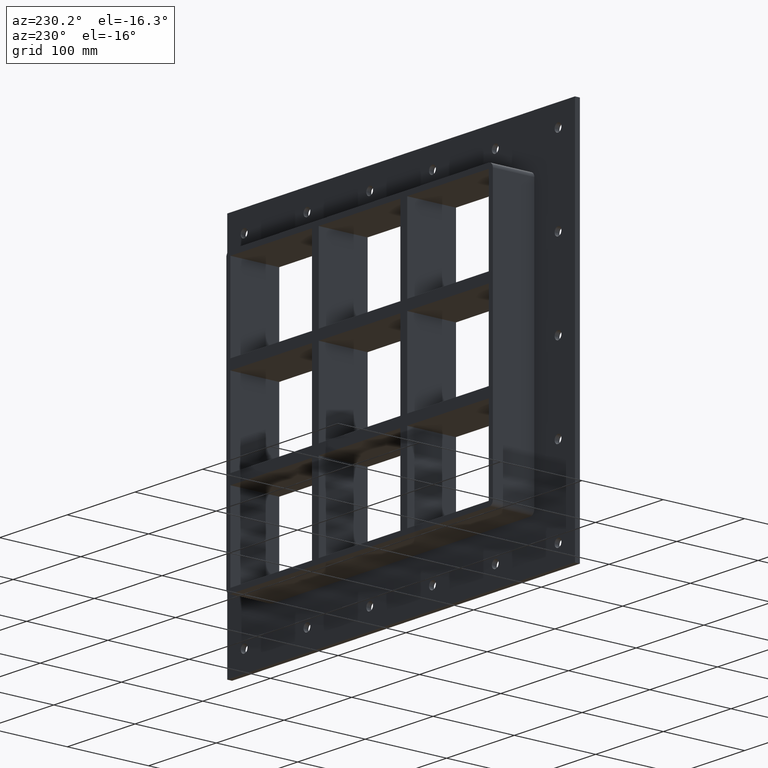
[diagram: clean part render]
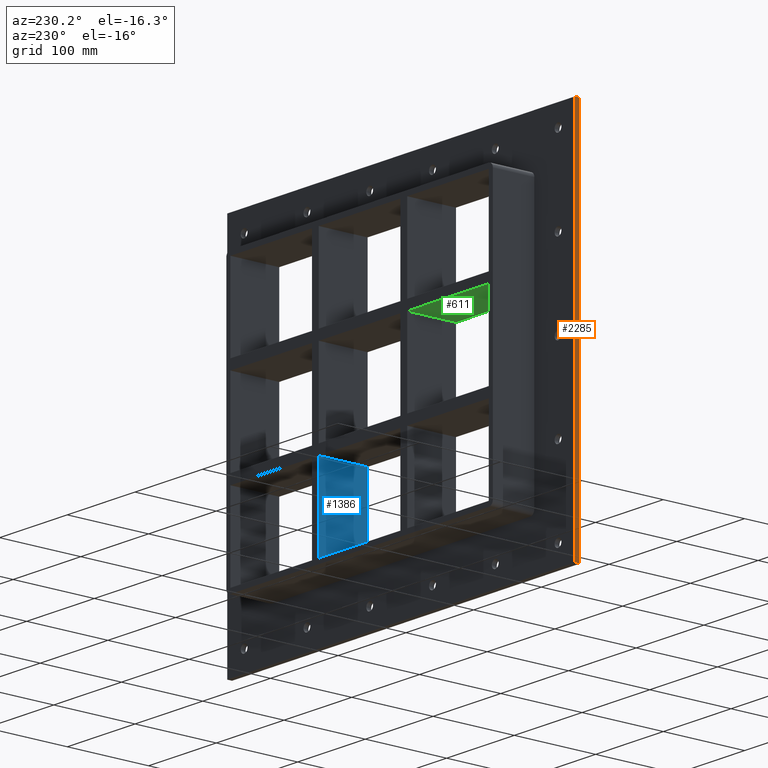
[diagram: same view with three faces highlighted in distinct colors, each labeled with its STEP entity id]
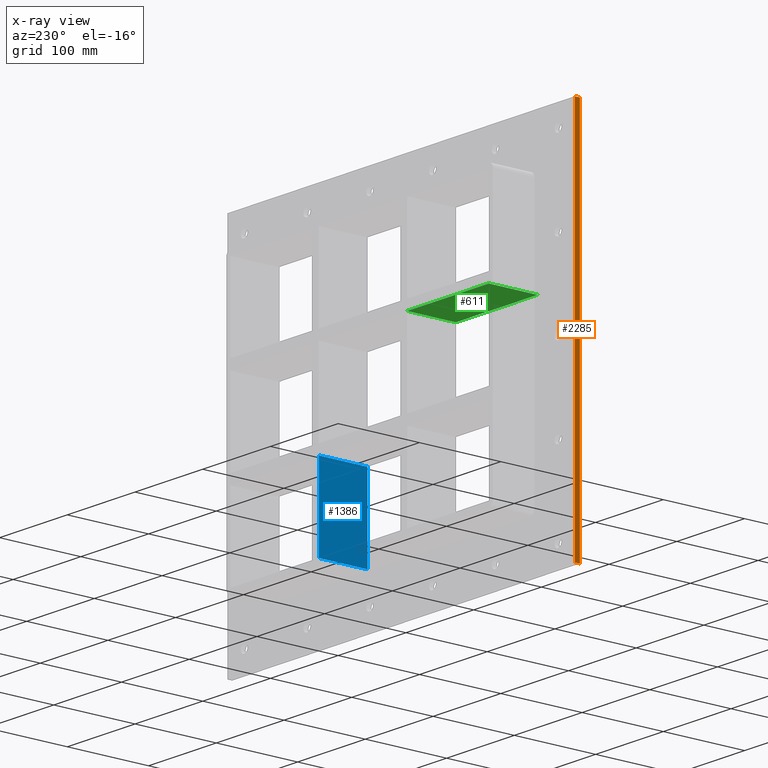
[diagram: x-ray of the same camera — body ghosted, the three highlighted faces saturated]
A machine part, auxiliary view with three faces highlighted in distinct colors.
The next image is the same camera in x-ray (body ghosted, the three faces saturated) — at least one of them is partly hidden behind the body in this view.
Their STEP definitions:

[orange] entity #2285 — the highlighted planar face has unit normal (-1, 0, 0).
#1941=CARTESIAN_POINT('',(-256.75000000000006,6.000000000000001,229.50000000000011));
#1942=VERTEX_POINT('',#1941);
#1959=CARTESIAN_POINT('',(-256.75000000000006,6.000000000000001,-229.50000000000011));
#1960=VERTEX_POINT('',#1959);
#1967=CARTESIAN_POINT('',(-256.75000000000006,6.000000000000001,-229.50000000000011));
#1968=DIRECTION('',(0.0,0.0,1.0));
#1969=VECTOR('',#1968,459.00000000000023);
#1970=LINE('',#1967,#1969);
#1971=EDGE_CURVE('',#1960,#1942,#1970,.T.);
#2105=CARTESIAN_POINT('',(-256.75000000000006,0.0,229.50000000000011));
#2106=VERTEX_POINT('',#2105);
#2115=CARTESIAN_POINT('',(-256.75000000000006,0.0,-229.50000000000011));
#2116=VERTEX_POINT('',#2115);
#2117=CARTESIAN_POINT('',(-256.75000000000006,0.0,-229.50000000000011));
#2118=DIRECTION('',(0.0,0.0,1.0));
#2119=VECTOR('',#2118,459.00000000000023);
#2120=LINE('',#2117,#2119);
#2121=EDGE_CURVE('',#2116,#2106,#2120,.T.);
#2264=CARTESIAN_POINT('',(-256.75000000000006,0.0,-229.50000000000011));
#2265=DIRECTION('',(-1.0,0.0,0.0));
#2266=DIRECTION('',(0.0,0.0,1.0));
#2267=AXIS2_PLACEMENT_3D('',#2264,#2265,#2266);
#2268=PLANE('',#2267);
#2269=ORIENTED_EDGE('',*,*,#2121,.T.);
#2270=CARTESIAN_POINT('',(-256.75000000000006,0.0,229.50000000000011));
#2271=DIRECTION('',(0.0,1.0,0.0));
#2272=VECTOR('',#2271,6.000000000000001);
#2273=LINE('',#2270,#2272);
#2274=EDGE_CURVE('',#2106,#1942,#2273,.T.);
#2275=ORIENTED_EDGE('',*,*,#2274,.T.);
#2276=ORIENTED_EDGE('',*,*,#1971,.F.);
#2277=CARTESIAN_POINT('',(-256.75000000000006,0.0,-229.50000000000011));
#2278=DIRECTION('',(0.0,1.0,0.0));
#2279=VECTOR('',#2278,6.000000000000001);
#2280=LINE('',#2277,#2279);
#2281=EDGE_CURVE('',#2116,#1960,#2280,.T.);
#2282=ORIENTED_EDGE('',*,*,#2281,.F.);
#2283=EDGE_LOOP('',(#2269,#2275,#2276,#2282));
#2284=FACE_OUTER_BOUND('',#2283,.T.);
#2285=ADVANCED_FACE('',(#2284),#2268,.T.);

[blue] entity #1386 — the highlighted planar face has unit normal (-1, 0, 0).
#1252=CARTESIAN_POINT('',(60.249999999998671,57.0,-163.50000000000009));
#1253=VERTEX_POINT('',#1252);
#1254=CARTESIAN_POINT('',(60.24999999999865,57.0,-62.500000000009365));
#1255=VERTEX_POINT('',#1254);
#1256=CARTESIAN_POINT('',(60.249999999998671,57.0,-163.50000000000009));
#1257=DIRECTION('',(0.0,0.0,1.0));
#1258=VECTOR('',#1257,100.99999999999072);
#1259=LINE('',#1256,#1258);
#1260=EDGE_CURVE('',#1253,#1255,#1259,.T.);
#1356=CARTESIAN_POINT('',(60.249999999998671,-3.0,-163.50000000000009));
#1357=DIRECTION('',(-1.0,0.0,0.0));
#1358=DIRECTION('',(0.0,0.0,1.0));
#1359=AXIS2_PLACEMENT_3D('',#1356,#1357,#1358);
#1360=PLANE('',#1359);
#1361=CARTESIAN_POINT('',(60.24999999999865,-3.0,-62.500000000009365));
#1362=VERTEX_POINT('',#1361);
#1363=CARTESIAN_POINT('',(60.24999999999865,57.0,-62.500000000009351));
#1364=DIRECTION('',(0.0,-1.0,0.0));
#1365=VECTOR('',#1364,60.0);
#1366=LINE('',#1363,#1365);
#1367=EDGE_CURVE('',#1255,#1362,#1366,.T.);
#1368=ORIENTED_EDGE('',*,*,#1367,.F.);
#1369=ORIENTED_EDGE('',*,*,#1260,.F.);
#1370=CARTESIAN_POINT('',(60.249999999998671,-3.0,-163.50000000000009));
#1371=VERTEX_POINT('',#1370);
#1372=CARTESIAN_POINT('',(60.249999999998671,-3.0,-163.50000000000009));
#1373=DIRECTION('',(0.0,1.0,0.0));
#1374=VECTOR('',#1373,60.000000000000007);
#1375=LINE('',#1372,#1374);
#1376=EDGE_CURVE('',#1371,#1253,#1375,.T.);
#1377=ORIENTED_EDGE('',*,*,#1376,.F.);
#1378=CARTESIAN_POINT('',(60.249999999998671,-3.0,-163.50000000000009));
#1379=DIRECTION('',(0.0,0.0,1.0));
#1380=VECTOR('',#1379,100.99999999999072);
#1381=LINE('',#1378,#1380);
#1382=EDGE_CURVE('',#1371,#1362,#1381,.T.);
#1383=ORIENTED_EDGE('',*,*,#1382,.T.);
#1384=EDGE_LOOP('',(#1368,#1369,#1377,#1383));
#1385=FACE_OUTER_BOUND('',#1384,.T.);
#1386=ADVANCED_FACE('',(#1385),#1360,.T.);

[green] entity #611 — the highlighted planar face has unit normal (0, 0, -1).
#572=CARTESIAN_POINT('',(190.74999999999818,-3.0,50.499999999990671));
#573=DIRECTION('',(0.0,0.0,-1.0));
#574=DIRECTION('',(-1.0,0.0,0.0));
#575=AXIS2_PLACEMENT_3D('',#572,#573,#574);
#576=PLANE('',#575);
#577=CARTESIAN_POINT('',(-70.250000000001364,-3.0,50.499999999990628));
#578=VERTEX_POINT('',#577);
#579=CARTESIAN_POINT('',(-70.250000000001364,57.0,50.499999999990628));
#580=VERTEX_POINT('',#579);
#581=CARTESIAN_POINT('',(-70.250000000001378,-3.0,50.499999999990628));
#582=DIRECTION('',(0.0,1.0,0.0));
#583=VECTOR('',#582,60.0);
#584=LINE('',#581,#583);
#585=EDGE_CURVE('',#578,#580,#584,.T.);
#586=ORIENTED_EDGE('',*,*,#585,.F.);
#587=CARTESIAN_POINT('',(-190.74999999999972,-3.0,50.499999999990628));
#588=VERTEX_POINT('',#587);
#589=CARTESIAN_POINT('',(-70.250000000001364,-3.0,50.499999999990642));
#590=DIRECTION('',(-1.0,0.0,0.0));
#591=VECTOR('',#590,120.49999999999841);
#592=LINE('',#589,#591);
#593=EDGE_CURVE('',#578,#588,#592,.T.);
#594=ORIENTED_EDGE('',*,*,#593,.T.);
#595=CARTESIAN_POINT('',(-190.74999999999972,57.0,50.499999999990628));
#596=VERTEX_POINT('',#595);
#597=CARTESIAN_POINT('',(-190.75000000000003,57.000000000000007,50.499999999990621));
#598=DIRECTION('',(0.0,-1.0,0.0));
#599=VECTOR('',#598,60.000000000000007);
#600=LINE('',#597,#599);
#601=EDGE_CURVE('',#596,#588,#600,.T.);
#602=ORIENTED_EDGE('',*,*,#601,.F.);
#603=CARTESIAN_POINT('',(-70.250000000001364,57.0,50.499999999990642));
#604=DIRECTION('',(-1.0,0.0,0.0));
#605=VECTOR('',#604,120.49999999999841);
#606=LINE('',#603,#605);
#607=EDGE_CURVE('',#580,#596,#606,.T.);
#608=ORIENTED_EDGE('',*,*,#607,.F.);
#609=EDGE_LOOP('',(#586,#594,#602,#608));
#610=FACE_OUTER_BOUND('',#609,.T.);
#611=ADVANCED_FACE('',(#610),#576,.T.);